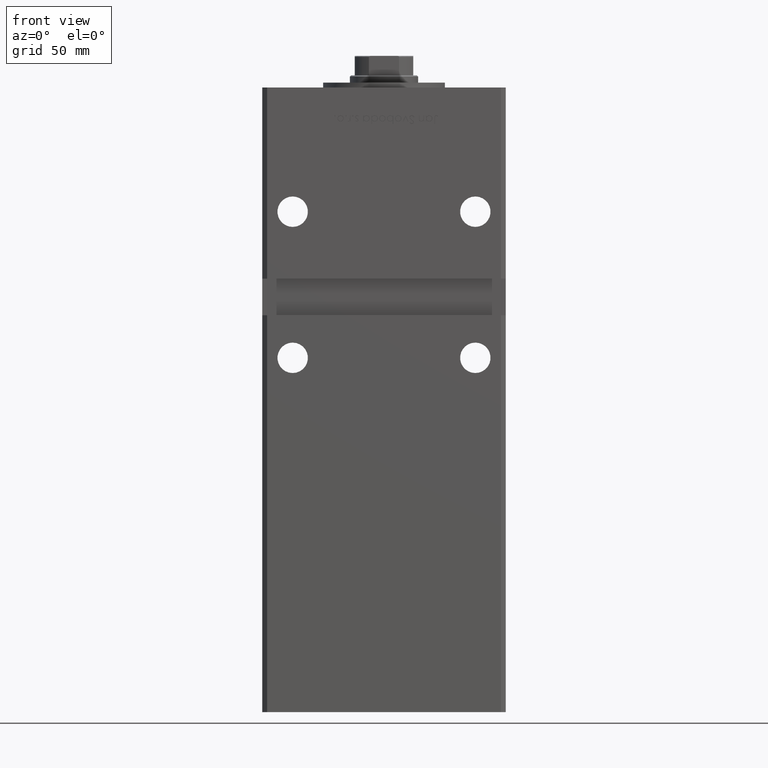
[diagram: clean part render]
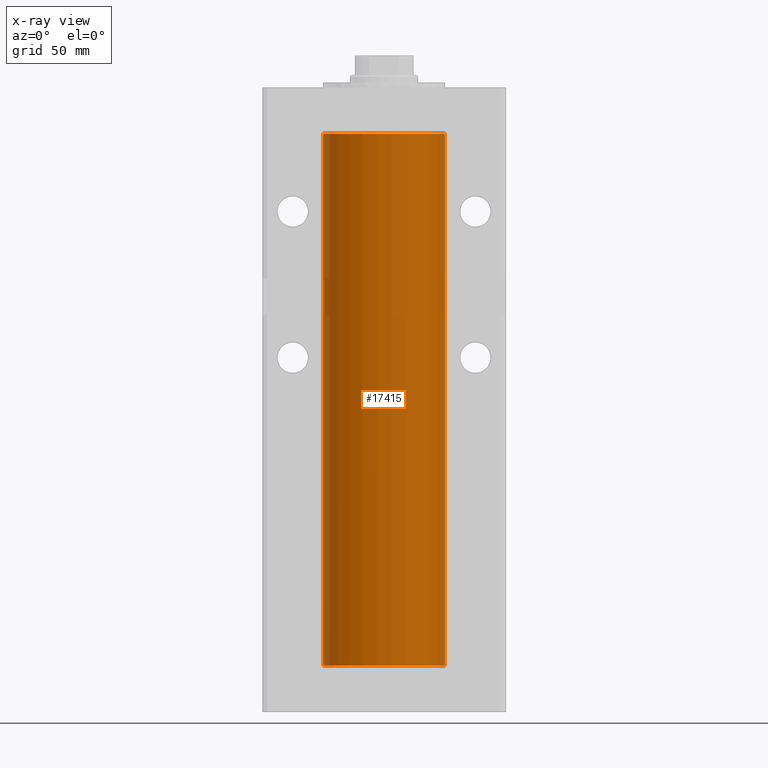
[diagram: x-ray — body ghosted, one internal face saturated and labeled with its STEP entity id]
A machine part, front view, then the same camera in x-ray: the body is ghosted and one INTERNAL B-rep face — a face not visible from any outside direction — is saturated and labeled: STEP entity #17415.
In plain terms, the highlighted cylindrical surface (partial cylindrical patch) has radius 25 mm, axis along (-0, -0, -1).
Its self-contained STEP definition (entity closure, byte-faithful):
#824 = ORIENTED_EDGE ( 'NONE', *, *, #8088, .T. ) ;
#2118 = VERTEX_POINT ( 'NONE', #5175 ) ;
#3613 = VERTEX_POINT ( 'NONE', #50776 ) ;
#4405 = DIRECTION ( 'NONE',  ( -0.000000000000000000, 0.000000000000000000, 1.000000000000000000 ) ) ;
#5175 = CARTESIAN_POINT ( 'NONE',  ( -25.00000000000000000, 0.000000000000000000, 0.000000000000000000 ) ) ;
#6678 = CARTESIAN_POINT ( 'NONE',  ( 25.00000000000000000, 3.061616997868383043E-15, 0.000000000000000000 ) ) ;
#8088 = EDGE_CURVE ( 'NONE', #8440, #36495, #38743, .T. ) ;
#8440 = VERTEX_POINT ( 'NONE', #38682 ) ;
#8491 = CARTESIAN_POINT ( 'NONE',  ( 0.000000000000000000, 0.000000000000000000, 0.000000000000000000 ) ) ;
#8723 = CARTESIAN_POINT ( 'NONE',  ( -25.00000000000000000, 0.000000000000000000, 218.5000000000000000 ) ) ;
#10235 = CARTESIAN_POINT ( 'NONE',  ( 25.00000000000000000, 3.061616997868383043E-15, 218.5000000000000000 ) ) ;
#12232 = LINE ( 'NONE', #8723, #18923 ) ;
#14206 = DIRECTION ( 'NONE',  ( -1.000000000000000000, 0.000000000000000000, 0.000000000000000000 ) ) ;
#16168 = CIRCLE ( 'NONE', #40167, 25.00000000000000000 ) ;
#16808 = DIRECTION ( 'NONE',  ( -0.000000000000000000, -0.000000000000000000, -1.000000000000000000 ) ) ;
#17415 = ADVANCED_FACE ( 'NONE', ( #22272 ), #42959, .F. ) ;
#18512 = EDGE_LOOP ( 'NONE', ( #32995, #824, #23457, #47845 ) ) ;
#18923 = VECTOR ( 'NONE', #16808, 1000.000000000000000 ) ;
#22272 = FACE_OUTER_BOUND ( 'NONE', #18512, .T. ) ;
#23457 = ORIENTED_EDGE ( 'NONE', *, *, #42489, .F. ) ;
#24369 = DIRECTION ( 'NONE',  ( 1.000000000000000000, 0.000000000000000000, 0.000000000000000000 ) ) ;
#27800 = AXIS2_PLACEMENT_3D ( 'NONE', #35422, #38934, #14206 ) ;
#28923 = AXIS2_PLACEMENT_3D ( 'NONE', #41494, #4405, #42290 ) ;
#30120 = VECTOR ( 'NONE', #51126, 1000.000000000000000 ) ;
#32995 = ORIENTED_EDGE ( 'NONE', *, *, #33140, .T. ) ;
#33140 = EDGE_CURVE ( 'NONE', #3613, #8440, #38356, .T. ) ;
#35422 = CARTESIAN_POINT ( 'NONE',  ( 0.000000000000000000, 0.000000000000000000, 218.5000000000000000 ) ) ;
#36200 = DIRECTION ( 'NONE',  ( -0.000000000000000000, 0.000000000000000000, 1.000000000000000000 ) ) ;
#36495 = VERTEX_POINT ( 'NONE', #6678 ) ;
#38356 = CIRCLE ( 'NONE', #28923, 25.00000000000000000 ) ;
#38682 = CARTESIAN_POINT ( 'NONE',  ( 25.00000000000000000, 3.061616997868383043E-15, 218.5000000000000000 ) ) ;
#38743 = LINE ( 'NONE', #10235, #30120 ) ;
#38934 = DIRECTION ( 'NONE',  ( -0.000000000000000000, -0.000000000000000000, -1.000000000000000000 ) ) ;
#40167 = AXIS2_PLACEMENT_3D ( 'NONE', #8491, #36200, #24369 ) ;
#41494 = CARTESIAN_POINT ( 'NONE',  ( 0.000000000000000000, 0.000000000000000000, 218.5000000000000000 ) ) ;
#42290 = DIRECTION ( 'NONE',  ( 1.000000000000000000, 0.000000000000000000, 0.000000000000000000 ) ) ;
#42489 = EDGE_CURVE ( 'NONE', #2118, #36495, #16168, .T. ) ;
#42959 = CYLINDRICAL_SURFACE ( 'NONE', #27800, 25.00000000000000000 ) ;
#47845 = ORIENTED_EDGE ( 'NONE', *, *, #48301, .F. ) ;
#48301 = EDGE_CURVE ( 'NONE', #3613, #2118, #12232, .T. ) ;
#50776 = CARTESIAN_POINT ( 'NONE',  ( -25.00000000000000000, 0.000000000000000000, 218.5000000000000000 ) ) ;
#51126 = DIRECTION ( 'NONE',  ( -0.000000000000000000, -0.000000000000000000, -1.000000000000000000 ) ) ;